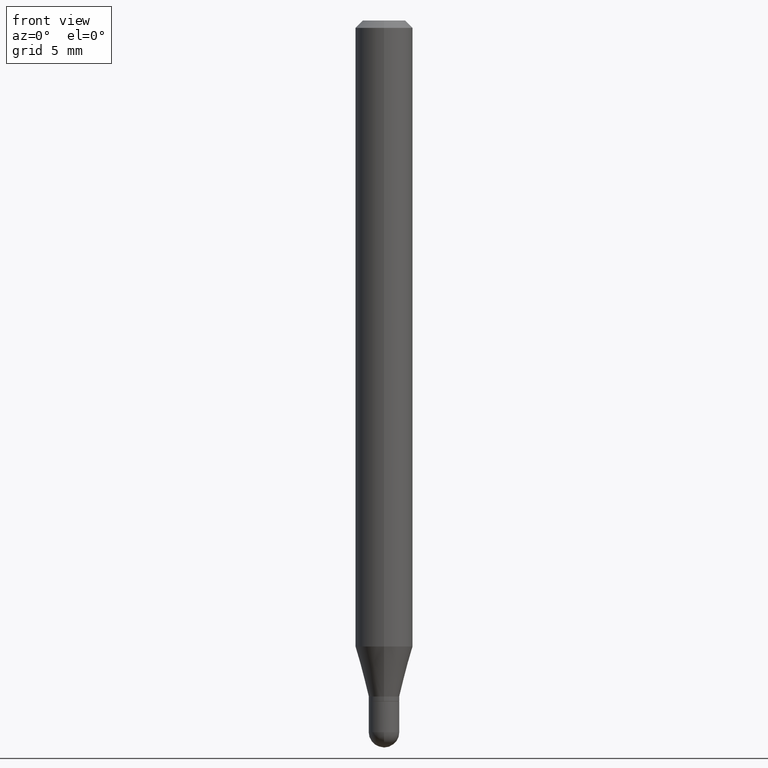
[diagram: clean part render]
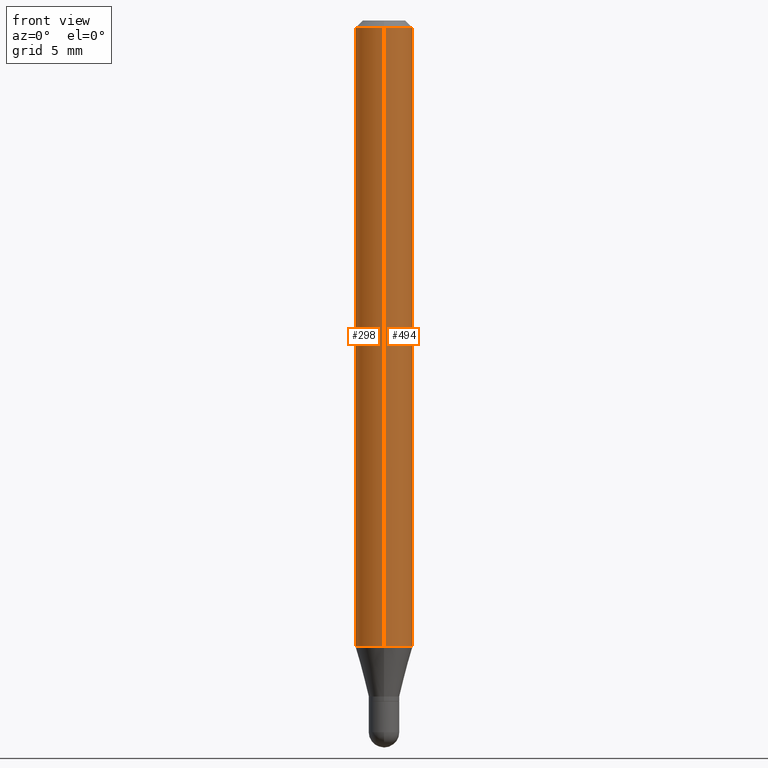
[diagram: same view with one multi-face feature highlighted, each face labeled with its STEP entity id]
A machine part, front view. The highlighted faces form ONE feature: a constant-radius fillet chain: 2 tangent blend faces with common blend radius 1.4999 mm. The faces share edges in the B-rep.
Their STEP definitions:
[1] entity #494 (Cylinder):
#8 = CARTESIAN_POINT ( 'NONE',  ( 3.668245891622715664E-31, -5.237160884717351433E-17, -0.01500000000000002373 ) ) ;
#11 = FACE_OUTER_BOUND ( 'NONE', #209, .T. ) ;
#15 = VERTEX_POINT ( 'NONE', #24 ) ;
#22 = LINE ( 'NONE', #99, #490 ) ;
#24 = CARTESIAN_POINT ( 'NONE',  ( -4.123439461173736383E-16, -0.05905000000000005383, -0.01499999999999981730 ) ) ;
#29 = EDGE_CURVE ( 'NONE', #367, #110, #22, .T. ) ;
#32 = DIRECTION ( 'NONE',  ( -6.982962677686265922E-15, -1.000000000000000000, 4.626330217890369336E-15 ) ) ;
#46 = CARTESIAN_POINT ( 'NONE',  ( 0.000000000000000000, 0.000000000000000000, 0.000000000000000000 ) ) ;
#55 = AXIS2_PLACEMENT_3D ( 'NONE', #8, #204, #480 ) ;
#62 = ORIENTED_EDGE ( 'NONE', *, *, #487, .F. ) ;
#79 = EDGE_CURVE ( 'NONE', #252, #15, #228, .T. ) ;
#99 = CARTESIAN_POINT ( 'NONE',  ( 4.195754854663390985E-16, 0.05904999999999999832, -2.061695668283727093E-16 ) ) ;
#110 = VERTEX_POINT ( 'NONE', #509 ) ;
#140 = DIRECTION ( 'NONE',  ( -2.445497261081806286E-29, 3.491440589811561722E-15, 1.000000000000000000 ) ) ;
#165 = ORIENTED_EDGE ( 'NONE', *, *, #79, .F. ) ;
#204 = DIRECTION ( 'NONE',  ( -2.445497261081806566E-29, 3.491440589811561722E-15, 1.000000000000000000 ) ) ;
#209 = EDGE_LOOP ( 'NONE', ( #478, #216, #62, #165 ) ) ;
#216 = ORIENTED_EDGE ( 'NONE', *, *, #29, .T. ) ;
#228 = LINE ( 'NONE', #422, #233 ) ;
#230 = DIRECTION ( 'NONE',  ( -2.445497261081806286E-29, 3.491440589811561722E-15, 1.000000000000000000 ) ) ;
#233 = VECTOR ( 'NONE', #230, 39.37007874015748143 ) ;
#247 = CIRCLE ( 'NONE', #55, 0.05904999999999999832 ) ;
#252 = VERTEX_POINT ( 'NONE', #390 ) ;
#289 = CYLINDRICAL_SURFACE ( 'NONE', #507, 0.05904999999999999832 ) ;
#296 = DIRECTION ( 'NONE',  ( -6.982962677686265922E-15, -1.000000000000000000, 3.491440589811561722E-15 ) ) ;
#301 = CIRCLE ( 'NONE', #446, 0.05904999999999999832 ) ;
#340 = EDGE_CURVE ( 'NONE', #252, #367, #301, .T. ) ;
#367 = VERTEX_POINT ( 'NONE', #461 ) ;
#380 = CARTESIAN_POINT ( 'NONE',  ( 3.150490103115979382E-29, -4.497960066801637033E-15, -1.288282000251477433 ) ) ;
#390 = CARTESIAN_POINT ( 'NONE',  ( -4.123439461173426755E-16, -0.05905000000000452248, -1.288282000251476989 ) ) ;
#417 = DIRECTION ( 'NONE',  ( -2.445497261081806566E-29, 3.491440589811561722E-15, 1.000000000000000000 ) ) ;
#422 = CARTESIAN_POINT ( 'NONE',  ( -4.123439461173739834E-16, -0.05904999999999999832, 2.061695668283727093E-16 ) ) ;
#428 = DIRECTION ( 'NONE',  ( -2.445497261081806566E-29, 3.491440589811561722E-15, 1.000000000000000000 ) ) ;
#446 = AXIS2_PLACEMENT_3D ( 'NONE', #380, #417, #32 ) ;
#461 = CARTESIAN_POINT ( 'NONE',  ( 4.195754854663704065E-16, 0.05904999999999547416, -1.288282000251477655 ) ) ;
#478 = ORIENTED_EDGE ( 'NONE', *, *, #340, .T. ) ;
#480 = DIRECTION ( 'NONE',  ( -6.982962677686265922E-15, -1.000000000000000000, 3.505890868245046092E-15 ) ) ;
#487 = EDGE_CURVE ( 'NONE', #15, #110, #247, .T. ) ;
#490 = VECTOR ( 'NONE', #140, 39.37007874015748143 ) ;
#494 = ADVANCED_FACE ( 'NONE', ( #11 ), #289, .T. ) ;
#507 = AXIS2_PLACEMENT_3D ( 'NONE', #46, #428, #296 ) ;
#509 = CARTESIAN_POINT ( 'NONE',  ( 4.195754854663708009E-16, 0.05904999999999994975, -0.01500000000000023016 ) ) ;
[2] entity #298 (Cylinder):
#3 = DIRECTION ( 'NONE',  ( -2.445497261081806566E-29, 3.491440589811561722E-15, 1.000000000000000000 ) ) ;
#15 = VERTEX_POINT ( 'NONE', #24 ) ;
#22 = LINE ( 'NONE', #99, #490 ) ;
#24 = CARTESIAN_POINT ( 'NONE',  ( -4.123439461173736383E-16, -0.05905000000000005383, -0.01499999999999981730 ) ) ;
#29 = EDGE_CURVE ( 'NONE', #367, #110, #22, .T. ) ;
#53 = ORIENTED_EDGE ( 'NONE', *, *, #462, .F. ) ;
#79 = EDGE_CURVE ( 'NONE', #252, #15, #228, .T. ) ;
#99 = CARTESIAN_POINT ( 'NONE',  ( 4.195754854663390985E-16, 0.05904999999999999832, -2.061695668283727093E-16 ) ) ;
#110 = VERTEX_POINT ( 'NONE', #509 ) ;
#132 = ORIENTED_EDGE ( 'NONE', *, *, #447, .T. ) ;
#140 = DIRECTION ( 'NONE',  ( -2.445497261081806286E-29, 3.491440589811561722E-15, 1.000000000000000000 ) ) ;
#166 = DIRECTION ( 'NONE',  ( -6.982962677686265922E-15, -1.000000000000000000, 3.505890868245046092E-15 ) ) ;
#170 = CIRCLE ( 'NONE', #308, 0.05904999999999999832 ) ;
#174 = CARTESIAN_POINT ( 'NONE',  ( 3.150490103115979382E-29, -4.497960066801637033E-15, -1.288282000251477433 ) ) ;
#220 = DIRECTION ( 'NONE',  ( -2.445497261081806566E-29, 3.491440589811561722E-15, 1.000000000000000000 ) ) ;
#228 = LINE ( 'NONE', #422, #233 ) ;
#230 = DIRECTION ( 'NONE',  ( -2.445497261081806286E-29, 3.491440589811561722E-15, 1.000000000000000000 ) ) ;
#233 = VECTOR ( 'NONE', #230, 39.37007874015748143 ) ;
#252 = VERTEX_POINT ( 'NONE', #390 ) ;
#255 = EDGE_LOOP ( 'NONE', ( #333, #132, #503, #53 ) ) ;
#258 = CYLINDRICAL_SURFACE ( 'NONE', #388, 0.05904999999999999832 ) ;
#298 = ADVANCED_FACE ( 'NONE', ( #355 ), #258, .T. ) ;
#308 = AXIS2_PLACEMENT_3D ( 'NONE', #174, #220, #336 ) ;
#321 = CARTESIAN_POINT ( 'NONE',  ( 3.668245891622715664E-31, -5.237160884717351433E-17, -0.01500000000000002373 ) ) ;
#327 = DIRECTION ( 'NONE',  ( -2.445497261081806566E-29, 3.491440589811561722E-15, 1.000000000000000000 ) ) ;
#333 = ORIENTED_EDGE ( 'NONE', *, *, #29, .F. ) ;
#336 = DIRECTION ( 'NONE',  ( -6.982962677686265922E-15, -1.000000000000000000, 4.626330217890369336E-15 ) ) ;
#355 = FACE_OUTER_BOUND ( 'NONE', #255, .T. ) ;
#367 = VERTEX_POINT ( 'NONE', #461 ) ;
#379 = CIRCLE ( 'NONE', #465, 0.05904999999999999832 ) ;
#388 = AXIS2_PLACEMENT_3D ( 'NONE', #444, #3, #402 ) ;
#390 = CARTESIAN_POINT ( 'NONE',  ( -4.123439461173426755E-16, -0.05905000000000452248, -1.288282000251476989 ) ) ;
#402 = DIRECTION ( 'NONE',  ( -6.982962677686265922E-15, -1.000000000000000000, 3.491440589811561722E-15 ) ) ;
#422 = CARTESIAN_POINT ( 'NONE',  ( -4.123439461173739834E-16, -0.05904999999999999832, 2.061695668283727093E-16 ) ) ;
#444 = CARTESIAN_POINT ( 'NONE',  ( 0.000000000000000000, 0.000000000000000000, 0.000000000000000000 ) ) ;
#447 = EDGE_CURVE ( 'NONE', #367, #252, #170, .T. ) ;
#461 = CARTESIAN_POINT ( 'NONE',  ( 4.195754854663704065E-16, 0.05904999999999547416, -1.288282000251477655 ) ) ;
#462 = EDGE_CURVE ( 'NONE', #110, #15, #379, .T. ) ;
#465 = AXIS2_PLACEMENT_3D ( 'NONE', #321, #327, #166 ) ;
#490 = VECTOR ( 'NONE', #140, 39.37007874015748143 ) ;
#503 = ORIENTED_EDGE ( 'NONE', *, *, #79, .T. ) ;
#509 = CARTESIAN_POINT ( 'NONE',  ( 4.195754854663708009E-16, 0.05904999999999994975, -0.01500000000000023016 ) ) ;